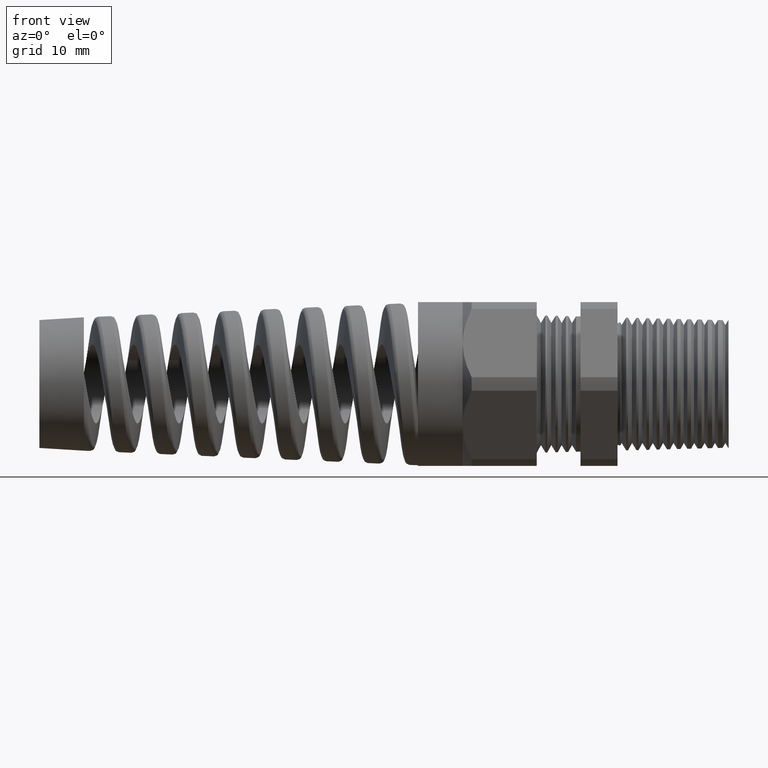
[diagram: clean part render]
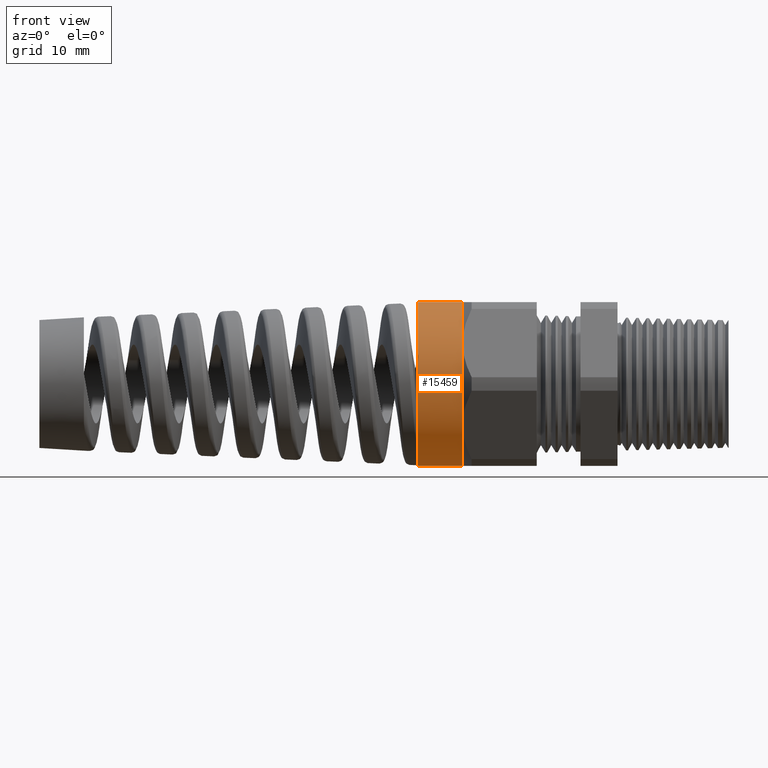
[diagram: same view with one face highlighted and labeled with its STEP entity id]
A machine part, front view. The second image highlights one B-rep face of the part: STEP entity #15459.
In plain terms, the highlighted cylindrical surface (partial cylindrical patch) has radius 11.049 mm, axis along (1, 0, 0).
Its self-contained STEP definition (entity closure, byte-faithful):
#13773 = CARTESIAN_POINT ( 'NONE',  ( -1.132519685039370400, 0.0000000000000000000, 0.4349999999999998900 ) ) ;
#13774 = CARTESIAN_POINT ( 'NONE',  ( -1.369721211586352600, 0.0000000000000000000, -0.4349999999999999400 ) ) ;
#13775 = CARTESIAN_POINT ( 'NONE',  ( -1.369721211586352600, 5.327213576290987000E-017, 0.4349999999999999400 ) ) ;
#13974 = DIRECTION ( 'NONE',  ( 0.0000000000000000000, 0.0000000000000000000, -1.000000000000000000 ) ) ;
#13975 = DIRECTION ( 'NONE',  ( 1.000000000000000000, 0.0000000000000000000, 0.0000000000000000000 ) ) ;
#13976 = AXIS2_PLACEMENT_3D ( 'NONE', #14018, #13975, #13974 ) ;
#13977 = CIRCLE ( 'NONE', #13976, 0.4350000000000000500 ) ;
#14015 = CARTESIAN_POINT ( 'NONE',  ( -1.132519685039370200, 0.0000000000000000000, 0.0000000000000000000 ) ) ;
#14016 = AXIS2_PLACEMENT_3D ( 'NONE', #14015, #14129, #14128 ) ;
#14017 = CIRCLE ( 'NONE', #14016, 0.4350000000000000500 ) ;
#14018 = CARTESIAN_POINT ( 'NONE',  ( -1.132519685039370200, 0.0000000000000000000, 0.0000000000000000000 ) ) ;
#14038 = DIRECTION ( 'NONE',  ( 0.0000000000000000000, 0.0000000000000000000, -1.000000000000000000 ) ) ;
#14039 = DIRECTION ( 'NONE',  ( 1.000000000000000000, 0.0000000000000000000, 0.0000000000000000000 ) ) ;
#14040 = CARTESIAN_POINT ( 'NONE',  ( -1.132519685039370200, 0.0000000000000000000, 0.0000000000000000000 ) ) ;
#14041 = AXIS2_PLACEMENT_3D ( 'NONE', #14040, #14039, #14038 ) ;
#14042 = CIRCLE ( 'NONE', #14041, 0.4350000000000000500 ) ;
#14128 = DIRECTION ( 'NONE',  ( 0.0000000000000000000, 0.0000000000000000000, -1.000000000000000000 ) ) ;
#14129 = DIRECTION ( 'NONE',  ( 1.000000000000000000, 0.0000000000000000000, 0.0000000000000000000 ) ) ;
#14183 = CARTESIAN_POINT ( 'NONE',  ( -1.132519685039370400, -0.3767210506462309600, -0.2175000000000000800 ) ) ;
#14284 = CARTESIAN_POINT ( 'NONE',  ( -1.132519685039370400, -0.3767210506462309000, 0.2174999999999998600 ) ) ;
#14463 = DIRECTION ( 'NONE',  ( 0.0000000000000000000, 0.0000000000000000000, -1.000000000000000000 ) ) ;
#14464 = DIRECTION ( 'NONE',  ( 1.000000000000000000, 0.0000000000000000000, 0.0000000000000000000 ) ) ;
#14465 = CARTESIAN_POINT ( 'NONE',  ( 0.0000000000000000000, 0.0000000000000000000, 0.0000000000000000000 ) ) ;
#14466 = AXIS2_PLACEMENT_3D ( 'NONE', #14465, #14464, #14463 ) ;
#14468 = CYLINDRICAL_SURFACE ( 'NONE', #14466, 0.4350000000000001600 ) ;
#14469 = FACE_OUTER_BOUND ( 'NONE', #15525, .T. ) ;
#14622 = DIRECTION ( 'NONE',  ( 0.0000000000000000000, 0.0000000000000000000, 1.000000000000000000 ) ) ;
#14623 = DIRECTION ( 'NONE',  ( -1.000000000000000000, 0.0000000000000000000, 0.0000000000000000000 ) ) ;
#14624 = CARTESIAN_POINT ( 'NONE',  ( -1.369721211586352600, 0.0000000000000000000, 0.0000000000000000000 ) ) ;
#14625 = AXIS2_PLACEMENT_3D ( 'NONE', #14624, #14623, #14622 ) ;
#14626 = CIRCLE ( 'NONE', #14625, 0.4349999999999999400 ) ;
#14931 = DIRECTION ( 'NONE',  ( 1.000000000000000000, 0.0000000000000000000, 0.0000000000000000000 ) ) ;
#14932 = VECTOR ( 'NONE', #14931, 39.37007874015748100 ) ;
#14933 = CARTESIAN_POINT ( 'NONE',  ( 0.0000000000000000000, 0.0000000000000000000, -0.4350000000000001600 ) ) ;
#14934 = LINE ( 'NONE', #14933, #14932 ) ;
#14935 = CARTESIAN_POINT ( 'NONE',  ( -1.132519685039370400, 0.0000000000000000000, -0.4350000000000000500 ) ) ;
#14953 = DIRECTION ( 'NONE',  ( 1.000000000000000000, 0.0000000000000000000, 0.0000000000000000000 ) ) ;
#14954 = VECTOR ( 'NONE', #14953, 39.37007874015748100 ) ;
#14955 = CARTESIAN_POINT ( 'NONE',  ( 0.0000000000000000000, 5.327213576290987600E-017, 0.4350000000000001600 ) ) ;
#14956 = LINE ( 'NONE', #14955, #14954 ) ;
#15060 = EDGE_CURVE ( 'NONE', #15149, #15151, #14956, .T. ) ;
#15069 = VERTEX_POINT ( 'NONE', #14935 ) ;
#15071 = EDGE_CURVE ( 'NONE', #15150, #15069, #14934, .T. ) ;
#15149 = VERTEX_POINT ( 'NONE', #13775 ) ;
#15150 = VERTEX_POINT ( 'NONE', #13774 ) ;
#15151 = VERTEX_POINT ( 'NONE', #13773 ) ;
#15201 = ORIENTED_EDGE ( 'NONE', *, *, #15071, .T. ) ;
#15202 = ORIENTED_EDGE ( 'NONE', *, *, #15203, .F. ) ;
#15203 = EDGE_CURVE ( 'NONE', #15289, #15069, #14017, .T. ) ;
#15204 = ORIENTED_EDGE ( 'NONE', *, *, #15205, .F. ) ;
#15205 = EDGE_CURVE ( 'NONE', #15325, #15289, #13977, .T. ) ;
#15206 = ORIENTED_EDGE ( 'NONE', *, *, #15207, .F. ) ;
#15207 = EDGE_CURVE ( 'NONE', #15151, #15325, #14042, .T. ) ;
#15289 = VERTEX_POINT ( 'NONE', #14183 ) ;
#15325 = VERTEX_POINT ( 'NONE', #14284 ) ;
#15459 = ADVANCED_FACE ( 'NONE', ( #14469 ), #14468, .T. ) ;
#15509 = ORIENTED_EDGE ( 'NONE', *, *, #15060, .F. ) ;
#15510 = ORIENTED_EDGE ( 'NONE', *, *, #15511, .F. ) ;
#15511 = EDGE_CURVE ( 'NONE', #15150, #15149, #14626, .T. ) ;
#15525 = EDGE_LOOP ( 'NONE', ( #15509, #15510, #15201, #15202, #15204, #15206 ) ) ;